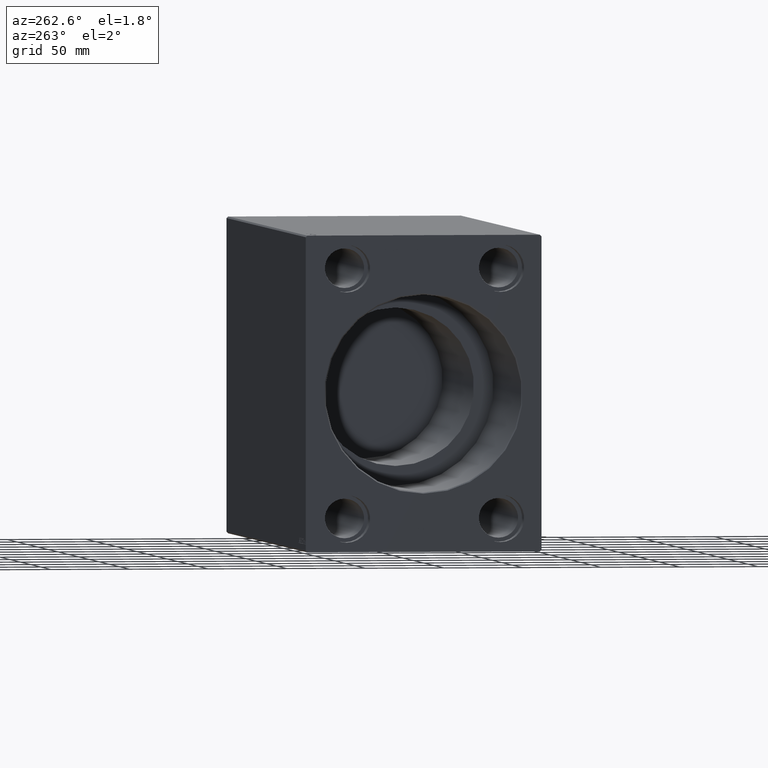
[diagram: clean part render]
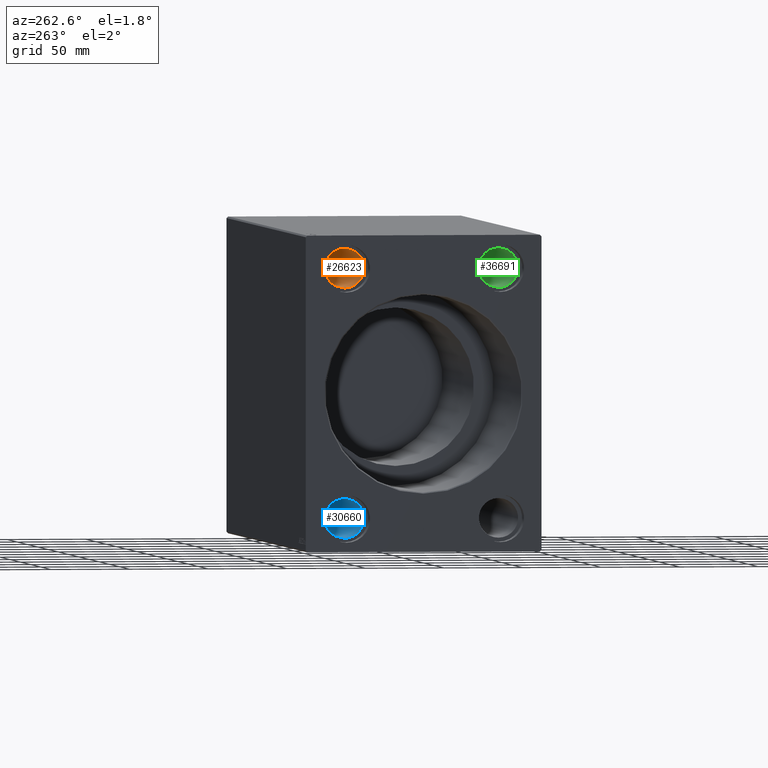
[diagram: same view with three faces highlighted in distinct colors, each labeled with its STEP entity id]
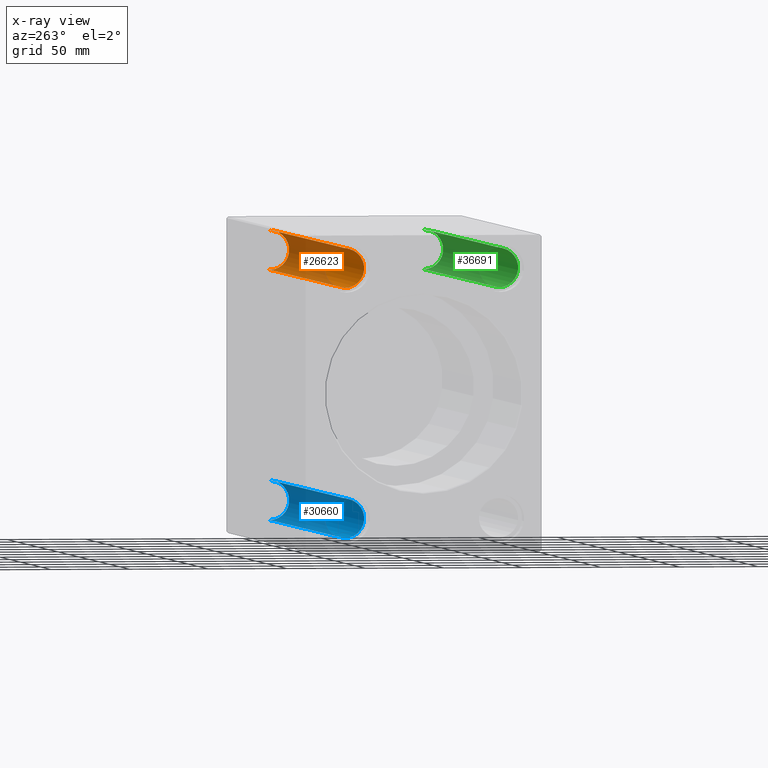
[diagram: x-ray of the same camera — body ghosted, the three highlighted faces saturated]
A machine part, auxiliary view with three faces highlighted in distinct colors.
The next image is the same camera in x-ray (body ghosted, the three faces saturated) — at least one of them is partly hidden behind the body in this view.
Their STEP definitions:

[orange] entity #26623 — the highlighted cylindrical surface (edge-blend (fillet) strip) has radius 12.5 mm, axis along (-1, -0, -0).
#1707 = ORIENTED_EDGE ( 'NONE', *, *, #33020, .F. ) ;
#1841 = CARTESIAN_POINT ( 'NONE',  ( 377.6700000000000159, 49.00000000000000711, 79.00000000000001421 ) ) ;
#2015 = CARTESIAN_POINT ( 'NONE',  ( 377.6700000000000159, 49.00000000000000711, 91.50000000000002842 ) ) ;
#3685 = DIRECTION ( 'NONE',  ( -1.000000000000000000, -0.000000000000000000, -0.000000000000000000 ) ) ;
#8256 = CARTESIAN_POINT ( 'NONE',  ( 10.33000000000000540, 49.00000000000000711, 91.50000000000002842 ) ) ;
#8721 = DIRECTION ( 'NONE',  ( 1.000000000000000000, -0.000000000000000000, -0.000000000000000000 ) ) ;
#9444 = ORIENTED_EDGE ( 'NONE', *, *, #10968, .F. ) ;
#10331 = FACE_OUTER_BOUND ( 'NONE', #40472, .T. ) ;
#10968 = EDGE_CURVE ( 'NONE', #36623, #34774, #42204, .T. ) ;
#11193 = AXIS2_PLACEMENT_3D ( 'NONE', #1841, #27760, #37586 ) ;
#11370 = LINE ( 'NONE', #28644, #23795 ) ;
#12061 = EDGE_CURVE ( 'NONE', #39391, #34774, #11370, .T. ) ;
#12706 = EDGE_CURVE ( 'NONE', #30422, #36623, #16509, .T. ) ;
#13095 = CARTESIAN_POINT ( 'NONE',  ( 388.0000000000000000, 49.00000000000000711, 91.50000000000002842 ) ) ;
#15772 = DIRECTION ( 'NONE',  ( -1.000000000000000000, -0.000000000000000000, -0.000000000000000000 ) ) ;
#16509 = LINE ( 'NONE', #13095, #16921 ) ;
#16728 = DIRECTION ( 'NONE',  ( 0.000000000000000000, 0.000000000000000000, 1.000000000000000000 ) ) ;
#16921 = VECTOR ( 'NONE', #35379, 1000.000000000000000 ) ;
#19692 = CARTESIAN_POINT ( 'NONE',  ( 377.6700000000000159, 49.00000000000000711, 66.50000000000000000 ) ) ;
#23795 = VECTOR ( 'NONE', #15772, 1000.000000000000000 ) ;
#24993 = DIRECTION ( 'NONE',  ( 0.000000000000000000, 0.000000000000000000, -1.000000000000000000 ) ) ;
#26623 = ADVANCED_FACE ( 'NONE', ( #10331 ), #35803, .F. ) ;
#27760 = DIRECTION ( 'NONE',  ( -1.000000000000000000, 0.000000000000000000, 0.000000000000000000 ) ) ;
#28512 = ORIENTED_EDGE ( 'NONE', *, *, #12706, .F. ) ;
#28644 = CARTESIAN_POINT ( 'NONE',  ( 388.0000000000000000, 49.00000000000000711, 66.50000000000000000 ) ) ;
#29097 = CARTESIAN_POINT ( 'NONE',  ( 10.33000000000000540, 49.00000000000000711, 66.50000000000000000 ) ) ;
#29432 = AXIS2_PLACEMENT_3D ( 'NONE', #38798, #3685, #16728 ) ;
#29632 = CIRCLE ( 'NONE', #11193, 12.50000000000001066 ) ;
#30422 = VERTEX_POINT ( 'NONE', #2015 ) ;
#33020 = EDGE_CURVE ( 'NONE', #39391, #30422, #29632, .T. ) ;
#33404 = ORIENTED_EDGE ( 'NONE', *, *, #12061, .T. ) ;
#34220 = CARTESIAN_POINT ( 'NONE',  ( 10.33000000000000540, 49.00000000000000711, 79.00000000000001421 ) ) ;
#34774 = VERTEX_POINT ( 'NONE', #29097 ) ;
#35379 = DIRECTION ( 'NONE',  ( -1.000000000000000000, -0.000000000000000000, -0.000000000000000000 ) ) ;
#35803 = CYLINDRICAL_SURFACE ( 'NONE', #29432, 12.50000000000001066 ) ;
#36623 = VERTEX_POINT ( 'NONE', #8256 ) ;
#37586 = DIRECTION ( 'NONE',  ( 0.000000000000000000, 0.000000000000000000, 1.000000000000000000 ) ) ;
#38798 = CARTESIAN_POINT ( 'NONE',  ( 388.0000000000000000, 49.00000000000000711, 79.00000000000001421 ) ) ;
#39391 = VERTEX_POINT ( 'NONE', #19692 ) ;
#40472 = EDGE_LOOP ( 'NONE', ( #1707, #33404, #9444, #28512 ) ) ;
#40834 = AXIS2_PLACEMENT_3D ( 'NONE', #34220, #8721, #24993 ) ;
#42204 = CIRCLE ( 'NONE', #40834, 12.50000000000001066 ) ;

[blue] entity #30660 — the highlighted cylindrical surface (edge-blend (fillet) strip) has radius 12.5 mm, axis along (-1, -0, -0).
#780 = DIRECTION ( 'NONE',  ( 0.000000000000000000, 0.000000000000000000, -1.000000000000000000 ) ) ;
#2375 = VECTOR ( 'NONE', #17729, 1000.000000000000000 ) ;
#4928 = VERTEX_POINT ( 'NONE', #41255 ) ;
#7377 = CARTESIAN_POINT ( 'NONE',  ( 388.0000000000000000, 49.00000000000000711, -66.50000000000000000 ) ) ;
#8798 = CARTESIAN_POINT ( 'NONE',  ( 10.33000000000000540, 49.00000000000000711, -79.00000000000001421 ) ) ;
#11107 = CARTESIAN_POINT ( 'NONE',  ( 388.0000000000000000, 49.00000000000000711, -91.50000000000002842 ) ) ;
#13793 = LINE ( 'NONE', #7377, #24004 ) ;
#13923 = ORIENTED_EDGE ( 'NONE', *, *, #23977, .T. ) ;
#14310 = LINE ( 'NONE', #11107, #2375 ) ;
#14854 = VERTEX_POINT ( 'NONE', #17416 ) ;
#15095 = VERTEX_POINT ( 'NONE', #33223 ) ;
#15728 = CIRCLE ( 'NONE', #39671, 12.50000000000001066 ) ;
#17168 = CARTESIAN_POINT ( 'NONE',  ( 388.0000000000000000, 49.00000000000000711, -79.00000000000001421 ) ) ;
#17416 = CARTESIAN_POINT ( 'NONE',  ( 10.33000000000000540, 49.00000000000000711, -66.50000000000000000 ) ) ;
#17729 = DIRECTION ( 'NONE',  ( -1.000000000000000000, -0.000000000000000000, -0.000000000000000000 ) ) ;
#20604 = DIRECTION ( 'NONE',  ( -1.000000000000000000, -0.000000000000000000, -0.000000000000000000 ) ) ;
#21302 = ORIENTED_EDGE ( 'NONE', *, *, #25874, .T. ) ;
#22104 = AXIS2_PLACEMENT_3D ( 'NONE', #17168, #20604, #29596 ) ;
#23977 = EDGE_CURVE ( 'NONE', #15095, #41609, #36218, .T. ) ;
#24004 = VECTOR ( 'NONE', #37336, 1000.000000000000000 ) ;
#24618 = AXIS2_PLACEMENT_3D ( 'NONE', #40153, #26907, #780 ) ;
#24822 = ORIENTED_EDGE ( 'NONE', *, *, #26400, .F. ) ;
#25072 = DIRECTION ( 'NONE',  ( 0.000000000000000000, 0.000000000000000000, 1.000000000000000000 ) ) ;
#25154 = ORIENTED_EDGE ( 'NONE', *, *, #41173, .T. ) ;
#25874 = EDGE_CURVE ( 'NONE', #4928, #14854, #15728, .T. ) ;
#26400 = EDGE_CURVE ( 'NONE', #15095, #14854, #13793, .T. ) ;
#26907 = DIRECTION ( 'NONE',  ( 1.000000000000000000, 0.000000000000000000, 0.000000000000000000 ) ) ;
#28293 = DIRECTION ( 'NONE',  ( -1.000000000000000000, 0.000000000000000000, 0.000000000000000000 ) ) ;
#28858 = EDGE_LOOP ( 'NONE', ( #13923, #25154, #21302, #24822 ) ) ;
#29391 = CYLINDRICAL_SURFACE ( 'NONE', #22104, 12.50000000000001066 ) ;
#29596 = DIRECTION ( 'NONE',  ( 0.000000000000000000, 0.000000000000000000, 1.000000000000000000 ) ) ;
#30031 = FACE_OUTER_BOUND ( 'NONE', #28858, .T. ) ;
#30660 = ADVANCED_FACE ( 'NONE', ( #30031 ), #29391, .F. ) ;
#33223 = CARTESIAN_POINT ( 'NONE',  ( 377.6700000000000159, 49.00000000000000711, -66.50000000000000000 ) ) ;
#36218 = CIRCLE ( 'NONE', #24618, 12.50000000000001066 ) ;
#37336 = DIRECTION ( 'NONE',  ( -1.000000000000000000, -0.000000000000000000, -0.000000000000000000 ) ) ;
#38579 = CARTESIAN_POINT ( 'NONE',  ( 377.6700000000000159, 49.00000000000000711, -91.50000000000002842 ) ) ;
#39671 = AXIS2_PLACEMENT_3D ( 'NONE', #8798, #28293, #25072 ) ;
#40153 = CARTESIAN_POINT ( 'NONE',  ( 377.6700000000000159, 49.00000000000000711, -79.00000000000001421 ) ) ;
#41173 = EDGE_CURVE ( 'NONE', #41609, #4928, #14310, .T. ) ;
#41255 = CARTESIAN_POINT ( 'NONE',  ( 10.33000000000000540, 49.00000000000000711, -91.50000000000002842 ) ) ;
#41609 = VERTEX_POINT ( 'NONE', #38579 ) ;

[green] entity #36691 — the highlighted cylindrical surface (edge-blend (fillet) strip) has radius 12.5 mm, axis along (-1, -0, -0).
#1210 = AXIS2_PLACEMENT_3D ( 'NONE', #3254, #12881, #16300 ) ;
#2575 = CIRCLE ( 'NONE', #1210, 12.50000000000001066 ) ;
#2771 = CARTESIAN_POINT ( 'NONE',  ( 377.6700000000000159, -48.99999999999999289, 79.00000000000001421 ) ) ;
#3254 = CARTESIAN_POINT ( 'NONE',  ( 10.33000000000000540, -48.99999999999999289, 79.00000000000001421 ) ) ;
#5231 = CARTESIAN_POINT ( 'NONE',  ( 388.0000000000000000, -48.99999999999999289, 66.50000000000000000 ) ) ;
#5992 = ORIENTED_EDGE ( 'NONE', *, *, #22695, .T. ) ;
#6464 = VECTOR ( 'NONE', #20201, 1000.000000000000000 ) ;
#7508 = VECTOR ( 'NONE', #18275, 1000.000000000000000 ) ;
#12697 = EDGE_CURVE ( 'NONE', #14824, #24533, #2575, .T. ) ;
#12881 = DIRECTION ( 'NONE',  ( -1.000000000000000000, 0.000000000000000000, 0.000000000000000000 ) ) ;
#13353 = LINE ( 'NONE', #39256, #6464 ) ;
#14824 = VERTEX_POINT ( 'NONE', #16766 ) ;
#16300 = DIRECTION ( 'NONE',  ( 0.000000000000000000, 0.000000000000000000, 1.000000000000000000 ) ) ;
#16766 = CARTESIAN_POINT ( 'NONE',  ( 10.33000000000000540, -48.99999999999999289, 66.50000000000000000 ) ) ;
#16798 = VERTEX_POINT ( 'NONE', #24242 ) ;
#17274 = VERTEX_POINT ( 'NONE', #39920 ) ;
#18020 = ORIENTED_EDGE ( 'NONE', *, *, #41309, .F. ) ;
#18275 = DIRECTION ( 'NONE',  ( -1.000000000000000000, -0.000000000000000000, -0.000000000000000000 ) ) ;
#19001 = ORIENTED_EDGE ( 'NONE', *, *, #12697, .T. ) ;
#20201 = DIRECTION ( 'NONE',  ( -1.000000000000000000, -0.000000000000000000, -0.000000000000000000 ) ) ;
#20741 = AXIS2_PLACEMENT_3D ( 'NONE', #2771, #29732, #35939 ) ;
#22695 = EDGE_CURVE ( 'NONE', #17274, #14824, #34568, .T. ) ;
#24242 = CARTESIAN_POINT ( 'NONE',  ( 377.6700000000000159, -48.99999999999999289, 91.50000000000002842 ) ) ;
#24533 = VERTEX_POINT ( 'NONE', #40429 ) ;
#28258 = CIRCLE ( 'NONE', #20741, 12.50000000000001066 ) ;
#28650 = EDGE_LOOP ( 'NONE', ( #35813, #5992, #19001, #18020 ) ) ;
#29732 = DIRECTION ( 'NONE',  ( 1.000000000000000000, 0.000000000000000000, 0.000000000000000000 ) ) ;
#30441 = DIRECTION ( 'NONE',  ( -1.000000000000000000, -0.000000000000000000, -0.000000000000000000 ) ) ;
#30652 = DIRECTION ( 'NONE',  ( 0.000000000000000000, 0.000000000000000000, 1.000000000000000000 ) ) ;
#31614 = EDGE_CURVE ( 'NONE', #16798, #17274, #28258, .T. ) ;
#31683 = AXIS2_PLACEMENT_3D ( 'NONE', #34701, #30441, #30652 ) ;
#34568 = LINE ( 'NONE', #5231, #7508 ) ;
#34701 = CARTESIAN_POINT ( 'NONE',  ( 388.0000000000000000, -48.99999999999999289, 79.00000000000001421 ) ) ;
#35813 = ORIENTED_EDGE ( 'NONE', *, *, #31614, .T. ) ;
#35939 = DIRECTION ( 'NONE',  ( 0.000000000000000000, 0.000000000000000000, -1.000000000000000000 ) ) ;
#36691 = ADVANCED_FACE ( 'NONE', ( #41107 ), #37277, .F. ) ;
#37277 = CYLINDRICAL_SURFACE ( 'NONE', #31683, 12.50000000000001066 ) ;
#39256 = CARTESIAN_POINT ( 'NONE',  ( 388.0000000000000000, -48.99999999999999289, 91.50000000000002842 ) ) ;
#39920 = CARTESIAN_POINT ( 'NONE',  ( 377.6700000000000159, -48.99999999999999289, 66.50000000000000000 ) ) ;
#40429 = CARTESIAN_POINT ( 'NONE',  ( 10.33000000000000540, -48.99999999999999289, 91.50000000000002842 ) ) ;
#41107 = FACE_OUTER_BOUND ( 'NONE', #28650, .T. ) ;
#41309 = EDGE_CURVE ( 'NONE', #16798, #24533, #13353, .T. ) ;